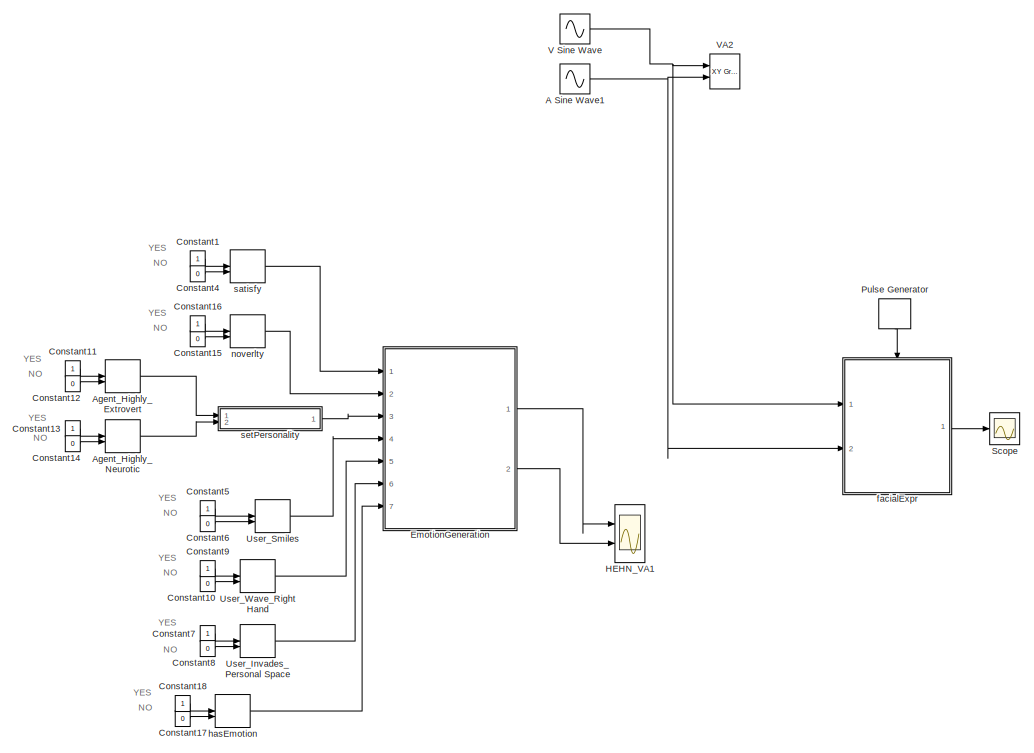
[diagram: root canvas - part 1/2, full width, top band]
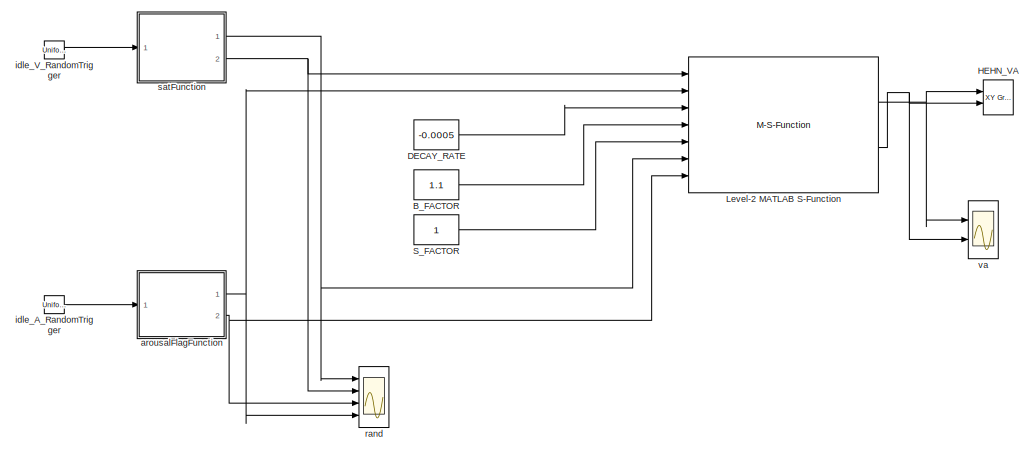
[diagram: root canvas - part 2/2, full width, bottom band]
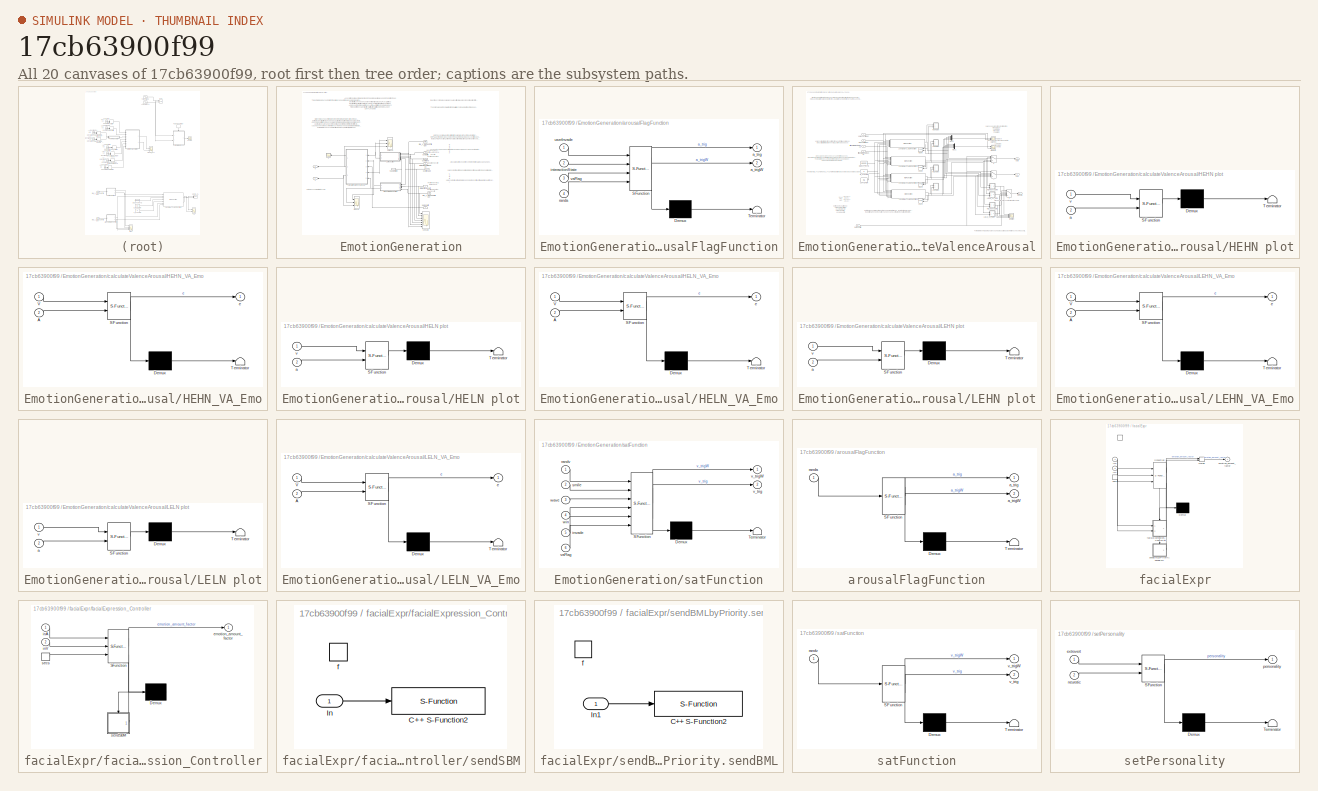
[diagram: thumbnail index - all 20 canvases of the model, root first then tree order]
MODEL slx_17cb63900f99
KIND model
BLOCK [Sin] A Sine Wave1
  Amplitude = 100
  Frequency = 0.1
  Ports = [0, 1]
  SampleTime = 0.01
BLOCK [ManualSwitch] Agent_Highly_Extrovert
  Commented = on
  CurrentSetting = 0
BLOCK [ManualSwitch] Agent_Highly_Neurotic
  Commented = on
  CurrentSetting = 0
BLOCK [Constant] B_FACTOR
  Commented = on
  Value = 1.1
BLOCK [Constant] Constant1
  Commented = on
  OutDataTypeStr = double
BLOCK [Constant] Constant10
  Commented = on
  OutDataTypeStr = double
  Value = 0
BLOCK [Constant] Constant11
  Commented = on
  OutDataTypeStr = boolean
BLOCK [Constant] Constant12
  Commented = on
  OutDataTypeStr = boolean
  Value = 0
BLOCK [Constant] Constant13
  Commented = on
  OutDataTypeStr = boolean
BLOCK [Constant] Constant14
  Commented = on
  OutDataTypeStr = boolean
  Value = 0
BLOCK [Constant] Constant15
  Commented = on
  OutDataTypeStr = double
  Value = 0
BLOCK [Constant] Constant16
  Commented = on
  OutDataTypeStr = double
BLOCK [Constant] Constant17
  Commented = on
  OutDataTypeStr = double
  Value = 0
BLOCK [Constant] Constant18
  Commented = on
  OutDataTypeStr = double
BLOCK [Constant] Constant4
  Commented = on
  OutDataTypeStr = double
  Value = 0
BLOCK [Constant] Constant5
  Commented = on
  OutDataTypeStr = double
BLOCK [Constant] Constant6
  Commented = on
  OutDataTypeStr = double
  Value = 0
BLOCK [Constant] Constant7
  Commented = on
  OutDataTypeStr = double
BLOCK [Constant] Constant8
  Commented = on
  OutDataTypeStr = double
  Value = 0
BLOCK [Constant] Constant9
  Commented = on
  OutDataTypeStr = double
BLOCK [Constant] DECAY_RATE
  Commented = on
  Value = -0.0005
BLOCK [SubSystem] EmotionGeneration
  Commented = on
  Ports = [7, 2]
  RequestExecContextInheritance = off
BLOCK [Outport] EmotionGeneration/A
  IconDisplay = Port number
  Port = 2
BLOCK [Outport] EmotionGeneration/V
  IconDisplay = Port number
BLOCK [Scope] EmotionGeneration/arousal
  Floating = off
  MaxDataPoints = 200000
  NumInputPorts = 3
  Ports = [3]
  SaveName = ScopeData12
  ShowLegends = off
  TickLabels = on
  YMax = 1~0.1~90
  YMin = -1~0~0
BLOCK [SubSystem] EmotionGeneration/arousalFlagFunction
  ErrorFcn = Stateflow.Translate.translate
  PermitHierarchicalResolution = ExplicitOnly
  Ports = [4, 2]
  RequestExecContextInheritance = off
  SFBlockType = MATLAB Function
  TreatAsAtomicUnit = on
BLOCK [Demux] EmotionGeneration/arousalFlagFunction/ Demux 
  Outputs = 1
  Ports = [1, 1]
BLOCK [S-Function] EmotionGeneration/arousalFlagFunction/ SFunction 
  EnableBusSupport = on
  FunctionName = sf_sfun
  PortCounts = [4 3]
  Ports = [4, 3]
  Tag = Stateflow S-Function Demo_AU_VA 14
BLOCK [Terminator] EmotionGeneration/arousalFlagFunction/ Terminator 
BLOCK [Outport] EmotionGeneration/arousalFlagFunction/a_trig
  IconDisplay = Port number
BLOCK [Outport] EmotionGeneration/arousalFlagFunction/a_trigW
  IconDisplay = Port number
  Port = 2
BLOCK [Inport] EmotionGeneration/arousalFlagFunction/interactionState
  IconDisplay = Port number
  Port = 2
BLOCK [Inport] EmotionGeneration/arousalFlagFunction/randa
  IconDisplay = Port number
  Port = 4
BLOCK [Inport] EmotionGeneration/arousalFlagFunction/userInvade
  IconDisplay = Port number
BLOCK [Inport] EmotionGeneration/arousalFlagFunction/vaFlag
  IconDisplay = Port number
  Port = 3
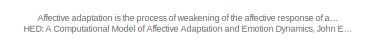
[diagram: EmotionGeneration/calculateValenceArousal - part 1/3, top left region]
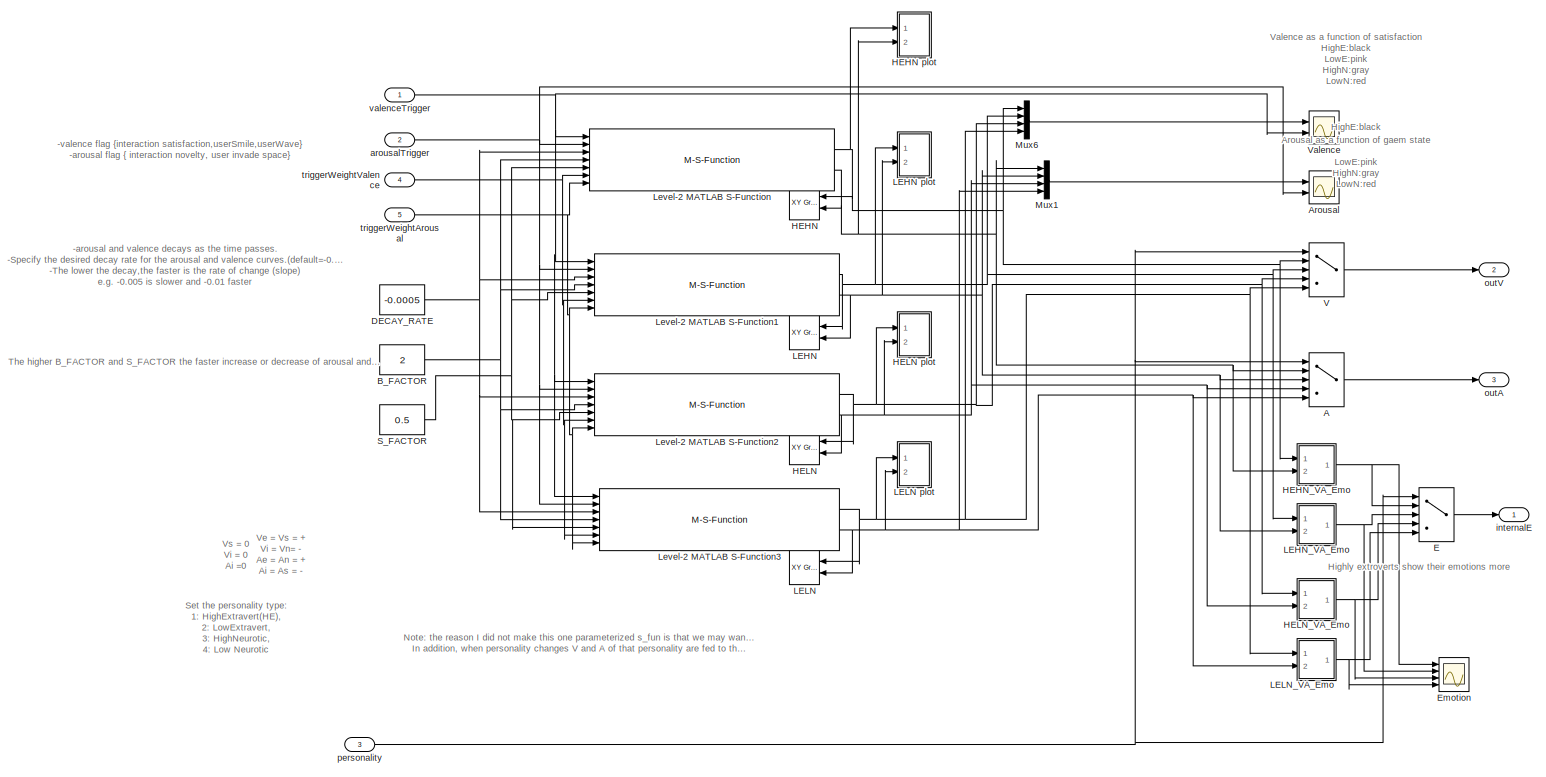
[diagram: EmotionGeneration/calculateValenceArousal - part 2/3, most of the canvas]
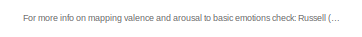
[diagram: EmotionGeneration/calculateValenceArousal - part 3/3, bottom right region]
BLOCK [SubSystem] EmotionGeneration/calculateValenceArousal
  Ports = [5, 3]
  RequestExecContextInheritance = off
BLOCK [MultiPortSwitch] EmotionGeneration/calculateValenceArousal/A
  InputSameDT = off
  Inputs = 4
  Ports = [5, 1]
  SaturateOnIntegerOverflow = off
BLOCK [Scope] EmotionGeneration/calculateValenceArousal/Arousal
  Floating = off
  MaxDataPoints = 20000
  NumInputPorts = 2
  Ports = [2]
  SaveName = ScopeData11
  ShowLegends = off
  YMax = 5~1
  YMin = -6~-1
BLOCK [Constant] EmotionGeneration/calculateValenceArousal/B_FACTOR
  Value = 2
BLOCK [Constant] EmotionGeneration/calculateValenceArousal/DECAY_RATE
  Value = -0.0005
BLOCK [MultiPortSwitch] EmotionGeneration/calculateValenceArousal/E
  InputSameDT = off
  Inputs = 4
  Ports = [5, 1]
  SaturateOnIntegerOverflow = off
BLOCK [Scope] EmotionGeneration/calculateValenceArousal/Emotion
  Floating = off
  LimitDataPoints = off
  MaxDataPoints = 10000
  NumInputPorts = 4
  Ports = [4]
  SaveName = ScopeData5
  ShowLegends = off
  TimeRange = 50
  YMax = 7.35~6.3~6.3~6.3
  YMin = 6.65~5.7~5.7~5.7
BLOCK [Reference] EmotionGeneration/calculateValenceArousal/HEHN  REF=simulink/Sinks/XY Graph
  Ports = [2]
  SourceBlock = simulink/Sinks/XY Graph
  SourceType = XY scope.
  st = -1
  xmax = 100
  xmin = -110
  ymax = 110
  ymin = -110
BLOCK [SubSystem] EmotionGeneration/calculateValenceArousal/HEHN plot
  ErrorFcn = Stateflow.Translate.translate
  PermitHierarchicalResolution = ExplicitOnly
  Ports = [2]
  RequestExecContextInheritance = off
  SFBlockType = MATLAB Function
  TreatAsAtomicUnit = on
BLOCK [Demux] EmotionGeneration/calculateValenceArousal/HEHN plot/ Demux 
  Outputs = 1
  Ports = [1, 1]
BLOCK [S-Function] EmotionGeneration/calculateValenceArousal/HEHN plot/ SFunction 
  EnableBusSupport = on
  FunctionName = sf_sfun
  PortCounts = [2 1]
  Ports = [2, 1]
  Tag = Stateflow S-Function Demo_AU_VA 46
BLOCK [Terminator] EmotionGeneration/calculateValenceArousal/HEHN plot/ Terminator 
BLOCK [Inport] EmotionGeneration/calculateValenceArousal/HEHN plot/a
  IconDisplay = Port number
  Port = 2
BLOCK [Inport] EmotionGeneration/calculateValenceArousal/HEHN plot/v
  IconDisplay = Port number
BLOCK [SubSystem] EmotionGeneration/calculateValenceArousal/HEHN_VA_Emo
  ErrorFcn = Stateflow.Translate.translate
  PermitHierarchicalResolution = ExplicitOnly
  Ports = [2, 1]
  RequestExecContextInheritance = off
  SFBlockType = Truth Table
  ShowPortLabels = SignalName
  TreatAsAtomicUnit = on
BLOCK [Demux] EmotionGeneration/calculateValenceArousal/HEHN_VA_Emo/ Demux 
  Outputs = 1
  Ports = [1, 1]
BLOCK [S-Function] EmotionGeneration/calculateValenceArousal/HEHN_VA_Emo/ SFunction 
  EnableBusSupport = on
  FunctionName = sf_sfun
  PortCounts = [2 2]
  Ports = [2, 2]
  Tag = Stateflow S-Function Demo_AU_VA 38
BLOCK [Terminator] EmotionGeneration/calculateValenceArousal/HEHN_VA_Emo/ Terminator 
BLOCK [Inport] EmotionGeneration/calculateValenceArousal/HEHN_VA_Emo/A
  IconDisplay = Port number
  Port = 2
BLOCK [Inport] EmotionGeneration/calculateValenceArousal/HEHN_VA_Emo/V
  IconDisplay = Port number
BLOCK [Outport] EmotionGeneration/calculateValenceArousal/HEHN_VA_Emo/e
  IconDisplay = Port number
BLOCK [Reference] EmotionGeneration/calculateValenceArousal/HELN  REF=simulink/Sinks/XY Graph
  Ports = [2]
  SourceBlock = simulink/Sinks/XY Graph
  SourceType = XY scope.
  st = -1
  xmax = 110
  xmin = -110
  ymax = 110
  ymin = -110
BLOCK [SubSystem] EmotionGeneration/calculateValenceArousal/HELN plot
  ErrorFcn = Stateflow.Translate.translate
  PermitHierarchicalResolution = ExplicitOnly
  Ports = [2]
  RequestExecContextInheritance = off
  SFBlockType = MATLAB Function
  TreatAsAtomicUnit = on
BLOCK [Demux] EmotionGeneration/calculateValenceArousal/HELN plot/ Demux 
  Outputs = 1
  Ports = [1, 1]
BLOCK [S-Function] EmotionGeneration/calculateValenceArousal/HELN plot/ SFunction 
  EnableBusSupport = on
  FunctionName = sf_sfun
  PortCounts = [2 1]
  Ports = [2, 1]
  Tag = Stateflow S-Function Demo_AU_VA 48
BLOCK [Terminator] EmotionGeneration/calculateValenceArousal/HELN plot/ Terminator 
BLOCK [Inport] EmotionGeneration/calculateValenceArousal/HELN plot/a
  IconDisplay = Port number
  Port = 2
BLOCK [Inport] EmotionGeneration/calculateValenceArousal/HELN plot/v
  IconDisplay = Port number
BLOCK [SubSystem] EmotionGeneration/calculateValenceArousal/HELN_VA_Emo
  ErrorFcn = Stateflow.Translate.translate
  PermitHierarchicalResolution = ExplicitOnly
  Ports = [2, 1]
  RequestExecContextInheritance = off
  SFBlockType = Truth Table
  ShowPortLabels = SignalName
  TreatAsAtomicUnit = on
BLOCK [Demux] EmotionGeneration/calculateValenceArousal/HELN_VA_Emo/ Demux 
  Outputs = 1
  Ports = [1, 1]
BLOCK [S-Function] EmotionGeneration/calculateValenceArousal/HELN_VA_Emo/ SFunction 
  EnableBusSupport = on
  FunctionName = sf_sfun
  PortCounts = [2 2]
  Ports = [2, 2]
  Tag = Stateflow S-Function Demo_AU_VA 39
BLOCK [Terminator] EmotionGeneration/calculateValenceArousal/HELN_VA_Emo/ Terminator 
BLOCK [Inport] EmotionGeneration/calculateValenceArousal/HELN_VA_Emo/A
  IconDisplay = Port number
  Port = 2
BLOCK [Inport] EmotionGeneration/calculateValenceArousal/HELN_VA_Emo/V
  IconDisplay = Port number
BLOCK [Outport] EmotionGeneration/calculateValenceArousal/HELN_VA_Emo/e
  IconDisplay = Port number
BLOCK [Reference] EmotionGeneration/calculateValenceArousal/LEHN  REF=simulink/Sinks/XY Graph
  Ports = [2]
  SourceBlock = simulink/Sinks/XY Graph
  SourceType = XY scope.
  st = -1
  xmax = 110
  xmin = -110
  ymax = 110
  ymin = -110
BLOCK [SubSystem] EmotionGeneration/calculateValenceArousal/LEHN plot
  ErrorFcn = Stateflow.Translate.translate
  PermitHierarchicalResolution = ExplicitOnly
  Ports = [2]
  RequestExecContextInheritance = off
  SFBlockType = MATLAB Function
  TreatAsAtomicUnit = on
BLOCK [Demux] EmotionGeneration/calculateValenceArousal/LEHN plot/ Demux 
  Outputs = 1
  Ports = [1, 1]
BLOCK [S-Function] EmotionGeneration/calculateValenceArousal/LEHN plot/ SFunction 
  EnableBusSupport = on
  FunctionName = sf_sfun
  PortCounts = [2 1]
  Ports = [2, 1]
  Tag = Stateflow S-Function Demo_AU_VA 47
BLOCK [Terminator] EmotionGeneration/calculateValenceArousal/LEHN plot/ Terminator 
BLOCK [Inport] EmotionGeneration/calculateValenceArousal/LEHN plot/a
  IconDisplay = Port number
  Port = 2
BLOCK [Inport] EmotionGeneration/calculateValenceArousal/LEHN plot/v
  IconDisplay = Port number
BLOCK [SubSystem] EmotionGeneration/calculateValenceArousal/LEHN_VA_Emo
  ErrorFcn = Stateflow.Translate.translate
  PermitHierarchicalResolution = ExplicitOnly
  Ports = [2, 1]
  RequestExecContextInheritance = off
  SFBlockType = Truth Table
  ShowPortLabels = SignalName
  TreatAsAtomicUnit = on
BLOCK [Demux] EmotionGeneration/calculateValenceArousal/LEHN_VA_Emo/ Demux 
  Outputs = 1
  Ports = [1, 1]
BLOCK [S-Function] EmotionGeneration/calculateValenceArousal/LEHN_VA_Emo/ SFunction 
  EnableBusSupport = on
  FunctionName = sf_sfun
  PortCounts = [2 2]
  Ports = [2, 2]
  Tag = Stateflow S-Function Demo_AU_VA 12
BLOCK [Terminator] EmotionGeneration/calculateValenceArousal/LEHN_VA_Emo/ Terminator 
BLOCK [Inport] EmotionGeneration/calculateValenceArousal/LEHN_VA_Emo/A
  IconDisplay = Port number
  Port = 2
BLOCK [Inport] EmotionGeneration/calculateValenceArousal/LEHN_VA_Emo/V
  IconDisplay = Port number
BLOCK [Outport] EmotionGeneration/calculateValenceArousal/LEHN_VA_Emo/e
  IconDisplay = Port number
BLOCK [Reference] EmotionGeneration/calculateValenceArousal/LELN  REF=simulink/Sinks/XY Graph
  Ports = [2]
  SourceBlock = simulink/Sinks/XY Graph
  SourceType = XY scope.
  st = -1
  xmax = 110
  xmin = -110
  ymax = 110
  ymin = -110
BLOCK [SubSystem] EmotionGeneration/calculateValenceArousal/LELN plot
  ErrorFcn = Stateflow.Translate.translate
  PermitHierarchicalResolution = ExplicitOnly
  Ports = [2]
  RequestExecContextInheritance = off
  SFBlockType = MATLAB Function
  TreatAsAtomicUnit = on
BLOCK [Demux] EmotionGeneration/calculateValenceArousal/LELN plot/ Demux 
  Outputs = 1
  Ports = [1, 1]
BLOCK [S-Function] EmotionGeneration/calculateValenceArousal/LELN plot/ SFunction 
  EnableBusSupport = on
  FunctionName = sf_sfun
  PortCounts = [2 1]
  Ports = [2, 1]
  Tag = Stateflow S-Function Demo_AU_VA 49
BLOCK [Terminator] EmotionGeneration/calculateValenceArousal/LELN plot/ Terminator 
BLOCK [Inport] EmotionGeneration/calculateValenceArousal/LELN plot/a
  IconDisplay = Port number
  Port = 2
BLOCK [Inport] EmotionGeneration/calculateValenceArousal/LELN plot/v
  IconDisplay = Port number
BLOCK [SubSystem] EmotionGeneration/calculateValenceArousal/LELN_VA_Emo
  ErrorFcn = Stateflow.Translate.translate
  PermitHierarchicalResolution = ExplicitOnly
  Ports = [2, 1]
  RequestExecContextInheritance = off
  SFBlockType = Truth Table
  ShowPortLabels = SignalName
  TreatAsAtomicUnit = on
BLOCK [Demux] EmotionGeneration/calculateValenceArousal/LELN_VA_Emo/ Demux 
  Outputs = 1
  Ports = [1, 1]
BLOCK [S-Function] EmotionGeneration/calculateValenceArousal/LELN_VA_Emo/ SFunction 
  EnableBusSupport = on
  FunctionName = sf_sfun
  PortCounts = [2 2]
  Ports = [2, 2]
  Tag = Stateflow S-Function Demo_AU_VA 41
BLOCK [Terminator] EmotionGeneration/calculateValenceArousal/LELN_VA_Emo/ Terminator 
BLOCK [Inport] EmotionGeneration/calculateValenceArousal/LELN_VA_Emo/A
  IconDisplay = Port number
  Port = 2
BLOCK [Inport] EmotionGeneration/calculateValenceArousal/LELN_VA_Emo/V
  IconDisplay = Port number
BLOCK [Outport] EmotionGeneration/calculateValenceArousal/LELN_VA_Emo/e
  IconDisplay = Port number
BLOCK [M-S-Function] EmotionGeneration/calculateValenceArousal/Level-2 MATLAB S-Function
  FunctionName = calculateVA_HEHN_sfun
  Ports = [7, 2]
BLOCK [M-S-Function] EmotionGeneration/calculateValenceArousal/Level-2 MATLAB S-Function1
  FunctionName = calculateVA_LEHN_sfun
  Ports = [7, 2]
BLOCK [M-S-Function] EmotionGeneration/calculateValenceArousal/Level-2 MATLAB S-Function2
  FunctionName = calculateVA_HELN_sfun
  Ports = [7, 2]
BLOCK [M-S-Function] EmotionGeneration/calculateValenceArousal/Level-2 MATLAB S-Function3
  FunctionName = calculateVA_LELN_sfun
  Ports = [7, 2]
BLOCK [Mux] EmotionGeneration/calculateValenceArousal/Mux1
  DisplayOption = bar
  Ports = [4, 1]
BLOCK [Mux] EmotionGeneration/calculateValenceArousal/Mux6
  DisplayOption = bar
  Ports = [4, 1]
BLOCK [Constant] EmotionGeneration/calculateValenceArousal/S_FACTOR
  Value = 0.5
BLOCK [MultiPortSwitch] EmotionGeneration/calculateValenceArousal/V
  InputSameDT = off
  Inputs = 4
  Ports = [5, 1]
  SaturateOnIntegerOverflow = off
BLOCK [Scope] EmotionGeneration/calculateValenceArousal/Valence
  Floating = off
  MaxDataPoints = 20000
  NumInputPorts = 2
  Ports = [2]
  SaveName = ScopeData6
  ShowLegends = off
  TimeRange = 10
  YMax = 10~1
  YMin = -12~-1
BLOCK [Inport] EmotionGeneration/calculateValenceArousal/arousalTrigger
  IconDisplay = Port number
  OutDataTypeStr = double
  Port = 2
  PortDimensions = 1
  SignalType = real
  VarSizeSig = No
BLOCK [Outport] EmotionGeneration/calculateValenceArousal/internalE
  IconDisplay = Port number
BLOCK [Outport] EmotionGeneration/calculateValenceArousal/outA
  IconDisplay = Port number
  Port = 3
BLOCK [Outport] EmotionGeneration/calculateValenceArousal/outV
  IconDisplay = Port number
  Port = 2
BLOCK [Inport] EmotionGeneration/calculateValenceArousal/personality
  IconDisplay = Port number
  OutDataTypeStr = double
  Port = 3
  PortDimensions = 1
  SignalType = real
  VarSizeSig = No
BLOCK [Inport] EmotionGeneration/calculateValenceArousal/triggerWeightArousal
  IconDisplay = Port number
  OutDataTypeStr = double
  Port = 5
  PortDimensions = 1
  SignalType = real
  VarSizeSig = No
BLOCK [Inport] EmotionGeneration/calculateValenceArousal/triggerWeightValence
  IconDisplay = Port number
  OutDataTypeStr = double
  Port = 4
  PortDimensions = 1
  SignalType = real
  VarSizeSig = No
BLOCK [Inport] EmotionGeneration/calculateValenceArousal/valenceTrigger
  IconDisplay = Port number
  OutDataTypeStr = double
  PortDimensions = 1
  SignalType = real
  VarSizeSig = No
BLOCK [Scope] EmotionGeneration/e
  Floating = off
  MaxDataPoints = 100000
  NumInputPorts = 1
  Ports = [1]
  ShowLegends = off
  TickLabels = on
  YMax = 1
  YMin = 0
BLOCK [Inport] EmotionGeneration/hasEmotion
  IconDisplay = Port number
  Port = 7
BLOCK [UniformRandomNumber] EmotionGeneration/idle_A_RandomTrigger
  Maximum = 100.9999
  Minimum = 0
  SampleTime = 0.01
  Seed = sum(10*clock)
BLOCK [UniformRandomNumber] EmotionGeneration/idle_V_RandomTrigger
  Maximum = 100.9999
  Minimum = 0
  SampleTime = 0.01
  Seed = sum(10*clock)
BLOCK [Inport] EmotionGeneration/interactionNovelty
  IconDisplay = Port number
  Port = 2
BLOCK [Inport] EmotionGeneration/interactionSatisfaction
  IconDisplay = Port number
BLOCK [Inport] EmotionGeneration/personality
  IconDisplay = Port number
  Port = 3
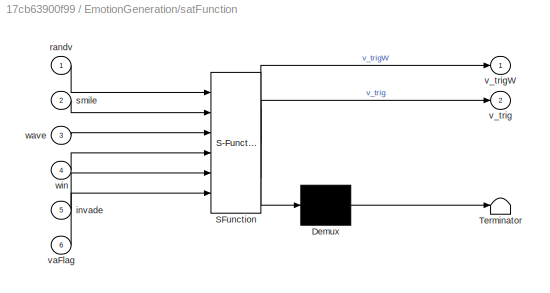
BLOCK [SubSystem] EmotionGeneration/satFunction
  ErrorFcn = Stateflow.Translate.translate
  PermitHierarchicalResolution = ExplicitOnly
  Ports = [6, 2]
  RequestExecContextInheritance = off
  SFBlockType = MATLAB Function
  TreatAsAtomicUnit = on
BLOCK [Demux] EmotionGeneration/satFunction/ Demux 
  Outputs = 1
  Ports = [1, 1]
BLOCK [S-Function] EmotionGeneration/satFunction/ SFunction 
  EnableBusSupport = on
  FunctionName = sf_sfun
  PortCounts = [6 3]
  Ports = [6, 3]
  Tag = Stateflow S-Function Demo_AU_VA 13
BLOCK [Terminator] EmotionGeneration/satFunction/ Terminator 
BLOCK [Inport] EmotionGeneration/satFunction/invade
  IconDisplay = Port number
  Port = 5
BLOCK [Inport] EmotionGeneration/satFunction/randv
  IconDisplay = Port number
BLOCK [Inport] EmotionGeneration/satFunction/smile
  IconDisplay = Port number
  Port = 2
BLOCK [Outport] EmotionGeneration/satFunction/v_trig
  IconDisplay = Port number
  Port = 2
BLOCK [Outport] EmotionGeneration/satFunction/v_trigW
  IconDisplay = Port number
BLOCK [Inport] EmotionGeneration/satFunction/vaFlag
  IconDisplay = Port number
  Port = 6
BLOCK [Inport] EmotionGeneration/satFunction/wave
  IconDisplay = Port number
  Port = 3
BLOCK [Inport] EmotionGeneration/satFunction/win
  IconDisplay = Port number
  Port = 4
BLOCK [Scope] EmotionGeneration/sensors
  Floating = off
  MaxDataPoints = 20000
  NumInputPorts = 7
  Ports = [7]
  SaveName = ScopeData10
  ShowLegends = off
  YMax = 1.05~-19.15~-19.15~5~5~5~5
  YMin = 0.95~-20.15~-20.15~-5~-5~-5~-5
BLOCK [Inport] EmotionGeneration/userInvade
  IconDisplay = Port number
  Port = 6
BLOCK [Inport] EmotionGeneration/userSmile
  IconDisplay = Port number
  Port = 4
BLOCK [Inport] EmotionGeneration/userWave
  IconDisplay = Port number
  Port = 5
BLOCK [Scope] EmotionGeneration/valence
  Floating = off
  MaxDataPoints = 100000
  NumInputPorts = 3
  Ports = [3]
  SaveName = ScopeData14
  ShowLegends = off
  TickLabels = on
  YMax = 1~1~-20
  YMin = 0~-1~-90
BLOCK [Reference] HEHN_VA  REF=simulink/Sinks/XY Graph
  Commented = on
  Ports = [2]
  SourceBlock = simulink/Sinks/XY Graph
  SourceType = XY scope.
  st = -1
  xmax = 100
  xmin = -110
  ymax = 110
  ymin = -110
BLOCK [Scope] HEHN_VA1
  Commented = on
  Floating = off
  NumInputPorts = 2
  Ports = [2]
  SaveName = ScopeData4
  ShowLegends = off
  YMax = 30~10.4
  YMin = 17~8.2
BLOCK [M-S-Function] Level-2 MATLAB S-Function
  Commented = on
  FunctionName = calculateVA_LEHN_sfun
  Ports = [7, 2]
BLOCK [DiscretePulseGenerator] Pulse Generator
  Ports = [0, 1]
  SampleTime = 0.01
BLOCK [Constant] S_FACTOR
  Commented = on
BLOCK [Scope] Scope
  Floating = off
  NumInputPorts = 1
  Ports = [1]
  SaveName = ScopeData1
  ShowLegends = off
BLOCK [ManualSwitch] User_Invades_Personal Space
  Commented = on
  CurrentSetting = 0
BLOCK [ManualSwitch] User_Smiles
  Commented = on
BLOCK [ManualSwitch] User_Wave_Right Hand
  Commented = on
  CurrentSetting = 0
BLOCK [Sin] V Sine Wave
  Amplitude = 100
  Ports = [0, 1]
  SampleTime = 0.01
BLOCK [Reference] VA2  REF=simulink/Sinks/XY Graph
  Ports = [2]
  SourceBlock = simulink/Sinks/XY Graph
  SourceType = XY scope.
  st = -1
  xmax = 100
  xmin = -110
  ymax = 110
  ymin = -110
BLOCK [SubSystem] arousalFlagFunction
  Commented = on
  ErrorFcn = Stateflow.Translate.translate
  PermitHierarchicalResolution = ExplicitOnly
  Ports = [1, 2]
  RequestExecContextInheritance = off
  SFBlockType = MATLAB Function
  TreatAsAtomicUnit = on
BLOCK [Demux] arousalFlagFunction/ Demux 
  Outputs = 1
  Ports = [1, 1]
BLOCK [S-Function] arousalFlagFunction/ SFunction 
  EnableBusSupport = on
  FunctionName = sf_sfun
  PortCounts = [1 3]
  Ports = [1, 3]
  Tag = Stateflow S-Function Demo_AU_VA 1
BLOCK [Terminator] arousalFlagFunction/ Terminator 
BLOCK [Outport] arousalFlagFunction/a_trig
  IconDisplay = Port number
BLOCK [Outport] arousalFlagFunction/a_trigW
  IconDisplay = Port number
  Port = 2
BLOCK [Inport] arousalFlagFunction/randa
  IconDisplay = Port number
BLOCK [SubSystem] facialExpr
  ErrorFcn = Stateflow.Translate.translate
  PermitHierarchicalResolution = ExplicitOnly
  Ports = [2, 1, 0, 1]
  RequestExecContextInheritance = off
  SFBlockType = Chart
  TreatAsAtomicUnit = on
BLOCK [DataStoreMemory] facialExpr/ 
  DataStoreName = bmlsL
  InitialValue = Stateflow.SLINSF.SimulinkMan.getDSMInitVal([[1000,5]], 0, 'bmlsL')
  OutDataTypeStr = double
  SignalType = real
  VectorParams1D = off
BLOCK [Demux] facialExpr/ Demux 
  Outputs = 1
  Ports = [1, 1]
BLOCK [Merge] facialExpr/ Merge 
  Ports = [2, 1]
BLOCK [S-Function] facialExpr/ SFunction 
  EnableBusSupport = on
  FunctionName = sf_sfun
  PortCounts = [3 4]
  Ports = [3, 4]
  Tag = Stateflow S-Function Demo_AU_VA 3
BLOCK [Outport] facialExpr/emotion_amount_factor
  IconDisplay = Port number
BLOCK [SubSystem] facialExpr/facialExpression_Controller
  AncestorBlock = lib_affectiveChar_behavior/notImitateSmile
  CopyFcn = set_param(gcbh, 'DSMNames', '', 'DSMValues', '', 'CopyFcn', '')
  DSMNames = bmlsL
  DSMValues = bmlsL
  ErrorFcn = Stateflow.Translate.translate
  PermitHierarchicalResolution = ExplicitOnly
  Ports = [2, 1, 0, 1]
  RequestExecContextInheritance = off
  SFBlockType = Chart
  TreatAsAtomicUnit = on
BLOCK [Demux] facialExpr/facialExpression_Controller/ Demux 
  Outputs = 1
  Ports = [1, 1]
BLOCK [S-Function] facialExpr/facialExpression_Controller/ SFunction 
  EnableBusSupport = off
  FunctionName = sf_sfun
  PortCounts = [3 3]
  Ports = [3, 3]
  Tag = Stateflow S-Function Demo_AU_VA 50
BLOCK [Outport] facialExpr/facialExpression_Controller/emotion_amount_factor
  IconDisplay = Port number
BLOCK [Inport] facialExpr/facialExpression_Controller/inA
  IconDisplay = Port number
BLOCK [Inport] facialExpr/facialExpression_Controller/inV
  IconDisplay = Port number
  Port = 2
BLOCK [TriggerPort] facialExpr/facialExpression_Controller/secs
  Ports = [0, 1]
  ShowOutputPort = on
  StatesWhenEnabling = held
BLOCK [SubSystem] facialExpr/facialExpression_Controller/sendSBM
  Ports = [1, 0, 0, 1]
  PreDeleteFcn = Stateflow.SLINSF.SimulinkMan.removePreDeleteFcn
  RequestExecContextInheritance = off
  UndoDeleteFcn = Stateflow.SLINSF.SimulinkMan.restorePreDeleteFcn
BLOCK [S-Function] facialExpr/facialExpression_Controller/sendSBM/C++ S-Function2
  EnableBusSupport = off
  FunctionName = yarpSendText_sfun
  Parameters = '/sim/out/smb0', '/SB/in/sbm'
  Ports = [1]
BLOCK [Inport] facialExpr/facialExpression_Controller/sendSBM/In
  IconDisplay = Port number
  OutDataTypeStr = double
  PortDimensions = [1000 1]
  SignalType = real
  VarSizeSig = No
BLOCK [TriggerPort] facialExpr/facialExpression_Controller/sendSBM/f
  CopyFcn = Stateflow.SLINSF.SimulinkMan.removeBlockPreDeleteFcn
  Ports = []
  PreDeleteFcn = Stateflow.SLINSF.SimulinkMan.unsafePredeleteFcn
  StatesWhenEnabling = held
  TriggerType = function-call
BLOCK [Inport] facialExpr/inA
  IconDisplay = Port number
  Port = 2
BLOCK [Inport] facialExpr/inV
  IconDisplay = Port number
BLOCK [TriggerPort] facialExpr/secs
  Ports = [0, 1]
  ShowOutputPort = on
  StatesWhenEnabling = held
BLOCK [SubSystem] facialExpr/sendBMLbyPriority.sendBML
  Ports = [1, 0, 0, 1]
  PreDeleteFcn = Stateflow.SLINSF.SimulinkMan.removePreDeleteFcn
  RequestExecContextInheritance = off
  UndoDeleteFcn = Stateflow.SLINSF.SimulinkMan.restorePreDeleteFcn
BLOCK [S-Function] facialExpr/sendBMLbyPriority.sendBML/C++ S-Function2
  EnableBusSupport = off
  FunctionName = yarpSendText_sfun
  Parameters = '/sim/out/bml0', '/SB/in/bml'
  Ports = [1]
BLOCK [Inport] facialExpr/sendBMLbyPriority.sendBML/In1
  IconDisplay = Port number
  OutDataTypeStr = double
  PortDimensions = [1000 1]
  SignalType = real
  VarSizeSig = No
BLOCK [TriggerPort] facialExpr/sendBMLbyPriority.sendBML/f
  CopyFcn = Stateflow.SLINSF.SimulinkMan.removeBlockPreDeleteFcn
  Ports = []
  PreDeleteFcn = Stateflow.SLINSF.SimulinkMan.unsafePredeleteFcn
  StatesWhenEnabling = held
  TriggerType = function-call
BLOCK [ManualSwitch] hasEmotion
  Commented = on
BLOCK [UniformRandomNumber] idle_A_RandomTrigger
  Commented = on
  Maximum = 100.9999
  Minimum = 0
  SampleTime = 0.1
  Seed = sum(10*clock)
BLOCK [UniformRandomNumber] idle_V_RandomTrigger
  Commented = on
  Maximum = 100.9999
  Minimum = 0
  SampleTime = 0.1
  Seed = sum(10*clock)
BLOCK [ManualSwitch] noverlty
  Commented = on
  CurrentSetting = 0
BLOCK [Scope] rand
  Commented = on
  Floating = off
  MaxDataPoints = 100000
  NumInputPorts = 4
  Ports = [4]
  SaveName = ScopeData2
  ShowLegends = off
  TickLabels = on
  YMax = 1~1~-20~5
  YMin = 0~-1~-90~-5
BLOCK [SubSystem] satFunction
  Commented = on
  ErrorFcn = Stateflow.Translate.translate
  PermitHierarchicalResolution = ExplicitOnly
  Ports = [1, 2]
  RequestExecContextInheritance = off
  SFBlockType = MATLAB Function
  TreatAsAtomicUnit = on
BLOCK [Demux] satFunction/ Demux 
  Outputs = 1
  Ports = [1, 1]
BLOCK [S-Function] satFunction/ SFunction 
  EnableBusSupport = on
  FunctionName = sf_sfun
  PortCounts = [1 3]
  Ports = [1, 3]
  Tag = Stateflow S-Function Demo_AU_VA 2
BLOCK [Terminator] satFunction/ Terminator 
BLOCK [Inport] satFunction/randv
  IconDisplay = Port number
BLOCK [Outport] satFunction/v_trig
  IconDisplay = Port number
  Port = 2
BLOCK [Outport] satFunction/v_trigW
  IconDisplay = Port number
BLOCK [ManualSwitch] satisfy
  Commented = on
  CurrentSetting = 0
BLOCK [SubSystem] setPersonality
  Commented = on
  ErrorFcn = Stateflow.Translate.translate
  PermitHierarchicalResolution = ExplicitOnly
  Ports = [2, 1]
  RequestExecContextInheritance = off
  SFBlockType = MATLAB Function
  TreatAsAtomicUnit = on
BLOCK [Demux] setPersonality/ Demux 
  Outputs = 1
  Ports = [1, 1]
BLOCK [S-Function] setPersonality/ SFunction 
  EnableBusSupport = on
  FunctionName = sf_sfun
  PortCounts = [2 2]
  Ports = [2, 2]
  Tag = Stateflow S-Function Demo_AU_VA 37
BLOCK [Terminator] setPersonality/ Terminator 
BLOCK [Inport] setPersonality/extrovert
  IconDisplay = Port number
BLOCK [Inport] setPersonality/neurotic
  IconDisplay = Port number
  Port = 2
BLOCK [Outport] setPersonality/personality
  IconDisplay = Port number
BLOCK [Scope] va
  Commented = on
  Floating = off
  NumInputPorts = 2
  Ports = [2]
  SaveName = ScopeData3
  ShowLegends = off
  YMax = 5~5
  YMin = -5~-5
ANNOTATION (root): NO
ANNOTATION (root): YES
ANNOTATION EmotionGeneration: -Gratch et al used a set of feature detectors that map features of task into apprisal variables that chracterized consequence of event from agent perspective. -Variables: desirability of consequences, likelihood of them,who deserve credit or blame,ability of agnet to alter consequence. Result is appraisal frames that characterize agent emotional reaction to event. -Copying: exploit tasks to uncove...<+376ch>
ANNOTATION EmotionGeneration: -In RPS scenario, agent is satisfied if she wins. (In satFunction, set satisfaction flag. ) -In RPS, agent is highly aroused when the game is in Go or Hands condition and low-aroused when in Ready or Over conditions. In arousFlagFunction, set in which states of the interaction agent experienced less or more arousal.
ANNOTATION EmotionGeneration: Arousal: Neurotics experience more emotional arousal changes.
ANNOTATION EmotionGeneration: Valence: Extraverts are more responsive to possitive stimule while neurotics are more responsive to negative stimulies. for more info check Eyesneck
ANNOTATION EmotionGeneration: Valence: Extraverts in general feel more positive. Neurotics in general feel more negative.
ANNOTATION EmotionGeneration: Three major approaches to affect modelling can be distinguished [1]: categorical, dimensional and appraisal-based approach (Orthony's OCC, Roseman, Scherer).
ANNOTATION EmotionGeneration: Association between implemented OCC appraisal variables and OCC emotion types Desirability,consequence of event for self,no prospect=Joy, Distress Desirability, DesirabilityForOthers= HappyFor, Gloating, Pitty, Resentment Approve action,Praiseworthiness =Pride, Admiration, Shame, Reproach Praiseworthiness, Desirability =Gratification, Gratitude, Remorse, Anger Like= Love, Hate Consequence of event...<+122ch>
ANNOTATION EmotionGeneration: I N T E R A C T I O N
ANNOTATION EmotionGeneration: In calculateVA, based on satisfaction and arousal, V and A curves and the internal emotion of the agent are calculated.
ANNOTATION EmotionGeneration: Negative Security
ANNOTATION EmotionGeneration: P E R C E P T I O N
ANNOTATION EmotionGeneration: Positive Novelty & Security
ANNOTATION EmotionGeneration: PositiveAutonomy & Novelty &Potency
ANNOTATION EmotionGeneration: PositiveNovelty & Relevence
ANNOTATION EmotionGeneration: PositiveNovelty & Security
ANNOTATION EmotionGeneration: Reactive system: Arousal/Valence & result facial expressions drive directly from stimulous evaluation.
ANNOTATION EmotionGeneration: Set delay's sample time to yours
ANNOTATION EmotionGeneration: The Zurich Model of Social Motivation (ZHM), (Bischof, 1985) defines three basic motivational systems: the security, the arousal, and the autonomy system.All of these are represented as negative feedback loops and are considered homeostatic. In addition, there is a fourth system, the coping system, which deals with cases in which one of the other systems gets blocked and cannot operate in its usua...<+41ch>
ANNOTATION EmotionGeneration/calculateValenceArousal: -arousal and valence decays as the time passes. -Specify the desired decay rate for the arousal and valence curves.(default=-0.001) -The lower the decay,the faster is the rate of change (slope) e.g. -0.005 is slower and -0.01 faster
ANNOTATION EmotionGeneration/calculateValenceArousal: -valence flag {interaction satisfaction,userSmile,userWave} -arousal flag { interaction novelty, user invade space}
ANNOTATION EmotionGeneration/calculateValenceArousal: For more info on mapping valence and arousal to basic emotions check: Russell (1980) A circumplex model of affect.
ANNOTATION EmotionGeneration/calculateValenceArousal: Affective adaptation is the process of weakening of the affective response of a constant or repeated affective stimulus by psychological processes. A modified exponentially weighted average computational model of affective adaptation is proposed. HED: A Computational Model of Affective Adaptation and Emotion Dynamics, John E. Steephen
ANNOTATION EmotionGeneration/calculateValenceArousal: Arousal as a function of gaem state HighE:black LowE:pink HighN:gray LowN:red
ANNOTATION EmotionGeneration/calculateValenceArousal: Highly extroverts show their emotions more
ANNOTATION EmotionGeneration/calculateValenceArousal: Note: the reason I did not make this one parameterized s_fun is that we may want to compare the generated emotion for 4 personalities at the same time. In addition, when personality changes V and A of that personality are fed to the system.
ANNOTATION EmotionGeneration/calculateValenceArousal: Set the personality type: 1: HighExtravert(HE), 2: LowExtravert, 3: HighNeurotic, 4: Low Neurotic
ANNOTATION EmotionGeneration/calculateValenceArousal: The higher B_FACTOR and S_FACTOR the faster increase or decrease of arousal and valence.(default B=0.75, S=0.25)
ANNOTATION EmotionGeneration/calculateValenceArousal: Valence as a function of satisfaction HighE:black LowE:pink HighN:gray LowN:red
ANNOTATION EmotionGeneration/calculateValenceArousal: Ve = Vs = + Vi = Vn= - Ae = An = + Ai = As = -
ANNOTATION EmotionGeneration/calculateValenceArousal: Vs = 0 Vi = 0 Ai =0
NET A Sine Wave1:1 -> VA2:2, facialExpr:2
LINE Agent_Highly_Extrovert:1 -> setPersonality:1
LINE Agent_Highly_Neurotic:1 -> setPersonality:2
LINE B_FACTOR:1 -> Level-2 MATLAB S-Function:4
LINE Constant10:1 -> User_Wave_Right Hand:2
LINE Constant11:1 -> Agent_Highly_Extrovert:1
LINE Constant12:1 -> Agent_Highly_Extrovert:2
LINE Constant13:1 -> Agent_Highly_Neurotic:1
LINE Constant14:1 -> Agent_Highly_Neurotic:2
LINE Constant15:1 -> noverlty:2
LINE Constant16:1 -> noverlty:1
LINE Constant17:1 -> hasEmotion:2
LINE Constant18:1 -> hasEmotion:1
LINE Constant1:1 -> satisfy:1
LINE Constant4:1 -> satisfy:2
LINE Constant5:1 -> User_Smiles:1
LINE Constant6:1 -> User_Smiles:2
LINE Constant7:1 -> User_Invades_Personal Space:1
LINE Constant8:1 -> User_Invades_Personal Space:2
LINE Constant9:1 -> User_Wave_Right Hand:1
LINE DECAY_RATE:1 -> Level-2 MATLAB S-Function:3
NET EmotionGeneration/arousalFlagFunction:1 -> EmotionGeneration/arousal:1, EmotionGeneration/calculateValenceArousal:2
NET EmotionGeneration/arousalFlagFunction:2 -> EmotionGeneration/arousal:2, EmotionGeneration/calculateValenceArousal:5
LINE EmotionGeneration/calculateValenceArousal/A:1 -> EmotionGeneration/calculateValenceArousal/outA:1
NET EmotionGeneration/calculateValenceArousal/B_FACTOR:1 -> EmotionGeneration/calculateValenceArousal/Level-2 MATLAB S-Function1:4, EmotionGeneration/calculateValenceArousal/Level-2 MATLAB S-Function2:4, EmotionGeneration/calculateValenceArousal/Level-2 MATLAB S-Function3:4, EmotionGeneration/calculateValenceArousal/Level-2 MATLAB S-Function:4
NET EmotionGeneration/calculateValenceArousal/DECAY_RATE:1 -> EmotionGeneration/calculateValenceArousal/Level-2 MATLAB S-Function1:3, EmotionGeneration/calculateValenceArousal/Level-2 MATLAB S-Function2:3, EmotionGeneration/calculateValenceArousal/Level-2 MATLAB S-Function3:3, EmotionGeneration/calculateValenceArousal/Level-2 MATLAB S-Function:3
LINE EmotionGeneration/calculateValenceArousal/E:1 -> EmotionGeneration/calculateValenceArousal/internalE:1
NET EmotionGeneration/calculateValenceArousal/HEHN_VA_Emo:1 -> EmotionGeneration/calculateValenceArousal/E:2, EmotionGeneration/calculateValenceArousal/Emotion:1
NET EmotionGeneration/calculateValenceArousal/HELN_VA_Emo:1 -> EmotionGeneration/calculateValenceArousal/E:4, EmotionGeneration/calculateValenceArousal/Emotion:3
NET EmotionGeneration/calculateValenceArousal/LEHN_VA_Emo:1 -> EmotionGeneration/calculateValenceArousal/E:3, EmotionGeneration/calculateValenceArousal/Emotion:2
NET EmotionGeneration/calculateValenceArousal/LELN_VA_Emo:1 -> EmotionGeneration/calculateValenceArousal/E:5, EmotionGeneration/calculateValenceArousal/Emotion:4
NET EmotionGeneration/calculateValenceArousal/Level-2 MATLAB S-Function1:1 -> EmotionGeneration/calculateValenceArousal/LEHN plot:1, EmotionGeneration/calculateValenceArousal/LEHN:1, EmotionGeneration/calculateValenceArousal/LEHN_VA_Emo:1, EmotionGeneration/calculateValenceArousal/Mux6:2, EmotionGeneration/calculateValenceArousal/V:3
NET EmotionGeneration/calculateValenceArousal/Level-2 MATLAB S-Function1:2 -> EmotionGeneration/calculateValenceArousal/A:3, EmotionGeneration/calculateValenceArousal/LEHN plot:2, EmotionGeneration/calculateValenceArousal/LEHN:2, EmotionGeneration/calculateValenceArousal/LEHN_VA_Emo:2, EmotionGeneration/calculateValenceArousal/Mux1:2
NET EmotionGeneration/calculateValenceArousal/Level-2 MATLAB S-Function2:1 -> EmotionGeneration/calculateValenceArousal/HELN plot:1, EmotionGeneration/calculateValenceArousal/HELN:1, EmotionGeneration/calculateValenceArousal/HELN_VA_Emo:1, EmotionGeneration/calculateValenceArousal/Mux6:3, EmotionGeneration/calculateValenceArousal/V:4
NET EmotionGeneration/calculateValenceArousal/Level-2 MATLAB S-Function2:2 -> EmotionGeneration/calculateValenceArousal/A:4, EmotionGeneration/calculateValenceArousal/HELN plot:2, EmotionGeneration/calculateValenceArousal/HELN:2, EmotionGeneration/calculateValenceArousal/HELN_VA_Emo:2, EmotionGeneration/calculateValenceArousal/Mux1:3
NET EmotionGeneration/calculateValenceArousal/Level-2 MATLAB S-Function3:1 -> EmotionGeneration/calculateValenceArousal/LELN plot:1, EmotionGeneration/calculateValenceArousal/LELN:1, EmotionGeneration/calculateValenceArousal/LELN_VA_Emo:1, EmotionGeneration/calculateValenceArousal/Mux6:4, EmotionGeneration/calculateValenceArousal/V:5
NET EmotionGeneration/calculateValenceArousal/Level-2 MATLAB S-Function3:2 -> EmotionGeneration/calculateValenceArousal/A:5, EmotionGeneration/calculateValenceArousal/LELN plot:2, EmotionGeneration/calculateValenceArousal/LELN:2, EmotionGeneration/calculateValenceArousal/LELN_VA_Emo:2, EmotionGeneration/calculateValenceArousal/Mux1:4
NET EmotionGeneration/calculateValenceArousal/Level-2 MATLAB S-Function:1 -> EmotionGeneration/calculateValenceArousal/HEHN plot:1, EmotionGeneration/calculateValenceArousal/HEHN:1, EmotionGeneration/calculateValenceArousal/HEHN_VA_Emo:1, EmotionGeneration/calculateValenceArousal/Mux6:1, EmotionGeneration/calculateValenceArousal/V:2
NET EmotionGeneration/calculateValenceArousal/Level-2 MATLAB S-Function:2 -> EmotionGeneration/calculateValenceArousal/A:2, EmotionGeneration/calculateValenceArousal/HEHN plot:2, EmotionGeneration/calculateValenceArousal/HEHN:2, EmotionGeneration/calculateValenceArousal/HEHN_VA_Emo:2, EmotionGeneration/calculateValenceArousal/Mux1:1
LINE EmotionGeneration/calculateValenceArousal/Mux1:1 -> EmotionGeneration/calculateValenceArousal/Arousal:1
LINE EmotionGeneration/calculateValenceArousal/Mux6:1 -> EmotionGeneration/calculateValenceArousal/Valence:1
NET EmotionGeneration/calculateValenceArousal/S_FACTOR:1 -> EmotionGeneration/calculateValenceArousal/Level-2 MATLAB S-Function1:5, EmotionGeneration/calculateValenceArousal/Level-2 MATLAB S-Function2:5, EmotionGeneration/calculateValenceArousal/Level-2 MATLAB S-Function3:5, EmotionGeneration/calculateValenceArousal/Level-2 MATLAB S-Function:5
LINE EmotionGeneration/calculateValenceArousal/V:1 -> EmotionGeneration/calculateValenceArousal/outV:1
NET EmotionGeneration/calculateValenceArousal/arousalTrigger:1 -> EmotionGeneration/calculateValenceArousal/Arousal:2, EmotionGeneration/calculateValenceArousal/Level-2 MATLAB S-Function1:2, EmotionGeneration/calculateValenceArousal/Level-2 MATLAB S-Function2:2, EmotionGeneration/calculateValenceArousal/Level-2 MATLAB S-Function3:2, EmotionGeneration/calculateValenceArousal/Level-2 MATLAB S-Function:2
NET EmotionGeneration/calculateValenceArousal/personality:1 -> EmotionGeneration/calculateValenceArousal/A:1, EmotionGeneration/calculateValenceArousal/E:1, EmotionGeneration/calculateValenceArousal/V:1
NET EmotionGeneration/calculateValenceArousal/triggerWeightArousal:1 -> EmotionGeneration/calculateValenceArousal/Level-2 MATLAB S-Function1:7, EmotionGeneration/calculateValenceArousal/Level-2 MATLAB S-Function2:7, EmotionGeneration/calculateValenceArousal/Level-2 MATLAB S-Function3:7, EmotionGeneration/calculateValenceArousal/Level-2 MATLAB S-Function:7
NET EmotionGeneration/calculateValenceArousal/triggerWeightValence:1 -> EmotionGeneration/calculateValenceArousal/Level-2 MATLAB S-Function1:6, EmotionGeneration/calculateValenceArousal/Level-2 MATLAB S-Function2:6, EmotionGeneration/calculateValenceArousal/Level-2 MATLAB S-Function3:6, EmotionGeneration/calculateValenceArousal/Level-2 MATLAB S-Function:6
NET EmotionGeneration/calculateValenceArousal/valenceTrigger:1 -> EmotionGeneration/calculateValenceArousal/Level-2 MATLAB S-Function1:1, EmotionGeneration/calculateValenceArousal/Level-2 MATLAB S-Function2:1, EmotionGeneration/calculateValenceArousal/Level-2 MATLAB S-Function3:1, EmotionGeneration/calculateValenceArousal/Level-2 MATLAB S-Function:1, EmotionGeneration/calculateValenceArousal/Valence:2
LINE EmotionGeneration/calculateValenceArousal:1 -> EmotionGeneration/e:1
NET EmotionGeneration/calculateValenceArousal:2 -> EmotionGeneration/V:1, EmotionGeneration/valence:3
NET EmotionGeneration/calculateValenceArousal:3 -> EmotionGeneration/A:1, EmotionGeneration/arousal:3
NET EmotionGeneration/hasEmotion:1 -> EmotionGeneration/arousalFlagFunction:3, EmotionGeneration/satFunction:6
NET EmotionGeneration/idle_A_RandomTrigger:1 -> EmotionGeneration/arousalFlagFunction:4, EmotionGeneration/sensors:1
NET EmotionGeneration/idle_V_RandomTrigger:1 -> EmotionGeneration/satFunction:1, EmotionGeneration/sensors:7
NET EmotionGeneration/interactionNovelty:1 -> EmotionGeneration/arousalFlagFunction:2, EmotionGeneration/sensors:2
NET EmotionGeneration/interactionSatisfaction:1 -> EmotionGeneration/satFunction:4, EmotionGeneration/sensors:4
LINE EmotionGeneration/personality:1 -> EmotionGeneration/calculateValenceArousal:3
NET EmotionGeneration/satFunction:1 -> EmotionGeneration/calculateValenceArousal:4, EmotionGeneration/valence:1
NET EmotionGeneration/satFunction:2 -> EmotionGeneration/calculateValenceArousal:1, EmotionGeneration/valence:2
NET EmotionGeneration/userInvade:1 -> EmotionGeneration/arousalFlagFunction:1, EmotionGeneration/satFunction:5, EmotionGeneration/sensors:3
NET EmotionGeneration/userSmile:1 -> EmotionGeneration/satFunction:2, EmotionGeneration/sensors:6
NET EmotionGeneration/userWave:1 -> EmotionGeneration/satFunction:3, EmotionGeneration/sensors:5
LINE EmotionGeneration:1 -> HEHN_VA1:1
LINE EmotionGeneration:2 -> HEHN_VA1:2
NET Level-2 MATLAB S-Function:1 -> HEHN_VA:1, va:1
NET Level-2 MATLAB S-Function:2 -> HEHN_VA:2, va:2
LINE Pulse Generator:1 -> facialExpr:trigger
LINE S_FACTOR:1 -> Level-2 MATLAB S-Function:5
LINE User_Invades_Personal Space:1 -> EmotionGeneration:6
LINE User_Smiles:1 -> EmotionGeneration:4
LINE User_Wave_Right Hand:1 -> EmotionGeneration:5
NET V Sine Wave:1 -> VA2:1, facialExpr:1
NET arousalFlagFunction:1 -> Level-2 MATLAB S-Function:2, rand:4
NET arousalFlagFunction:2 -> Level-2 MATLAB S-Function:7, rand:3
LINE facialExpr:1 -> Scope:1
LINE hasEmotion:1 -> EmotionGeneration:7
LINE idle_A_RandomTrigger:1 -> arousalFlagFunction:1
LINE idle_V_RandomTrigger:1 -> satFunction:1
LINE noverlty:1 -> EmotionGeneration:2
NET satFunction:1 -> Level-2 MATLAB S-Function:6, rand:1
NET satFunction:2 -> Level-2 MATLAB S-Function:1, rand:2
LINE satisfy:1 -> EmotionGeneration:1
LINE setPersonality:1 -> EmotionGeneration:3
note: NET lines group one-source signal fan-out (src -> all destinations, sorted); 1:1 wires keep LINE
